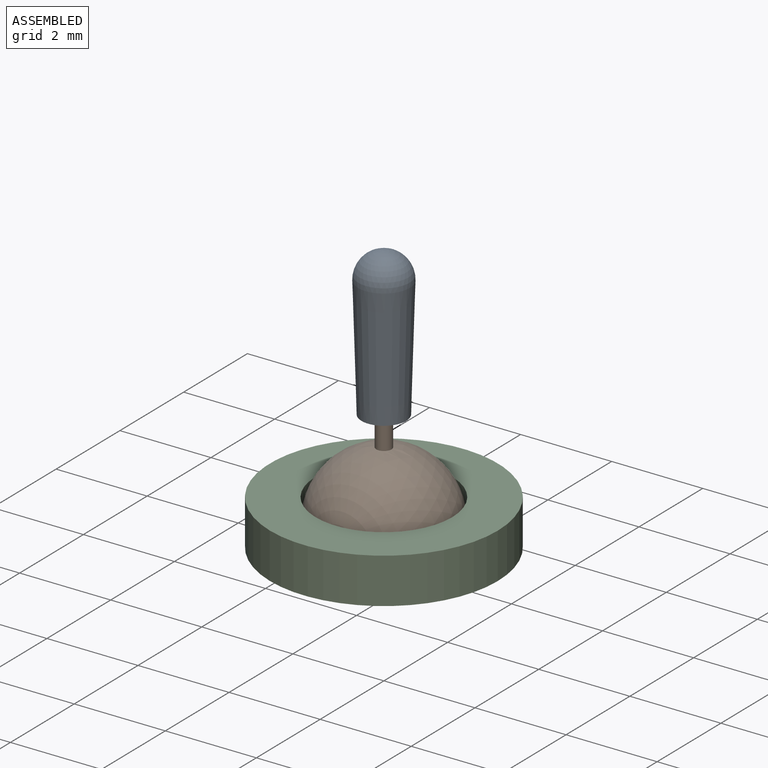
[diagram: assembled view]
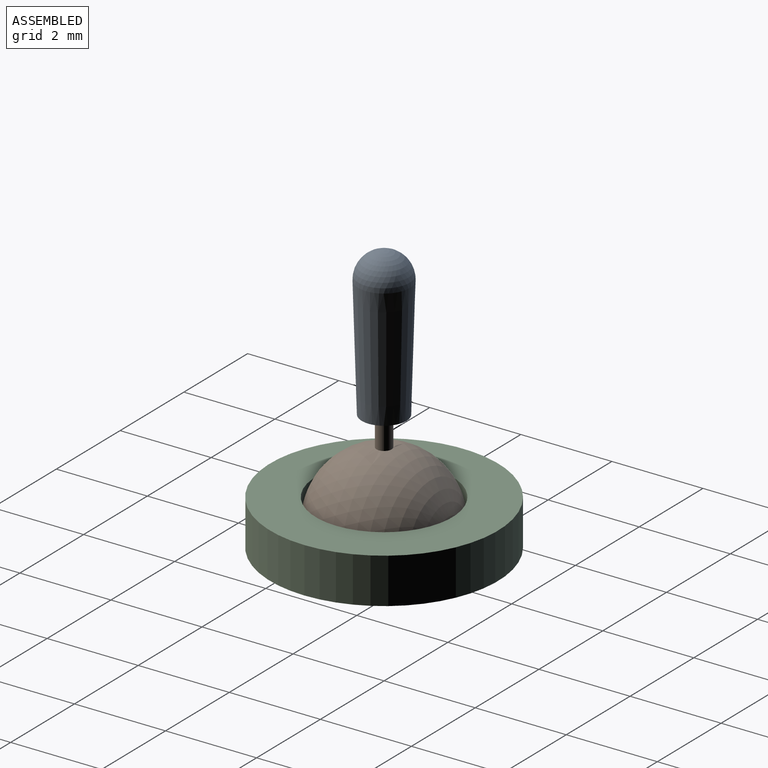
[diagram: assembled view, second angle]
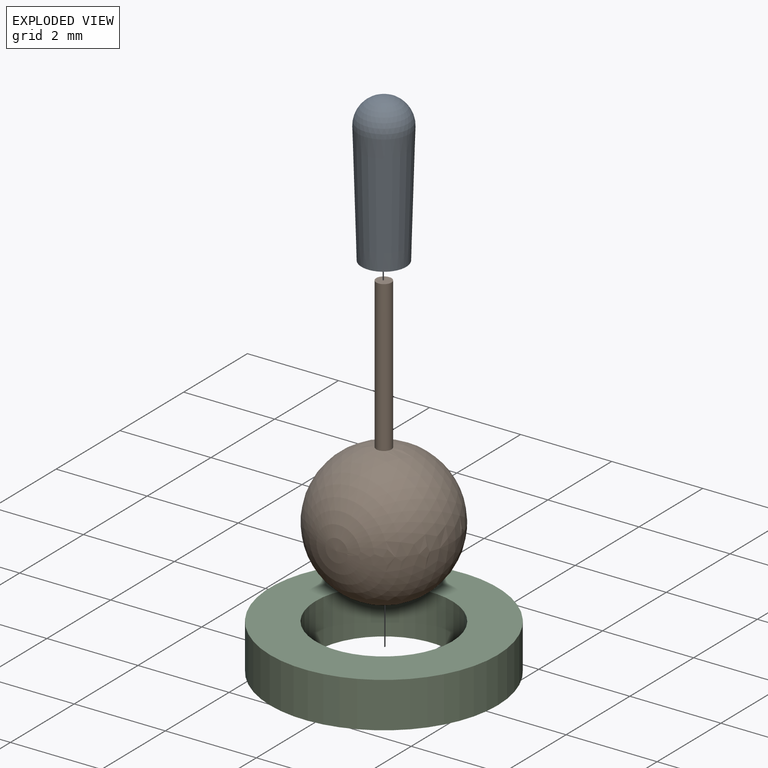
[diagram: exploded view]
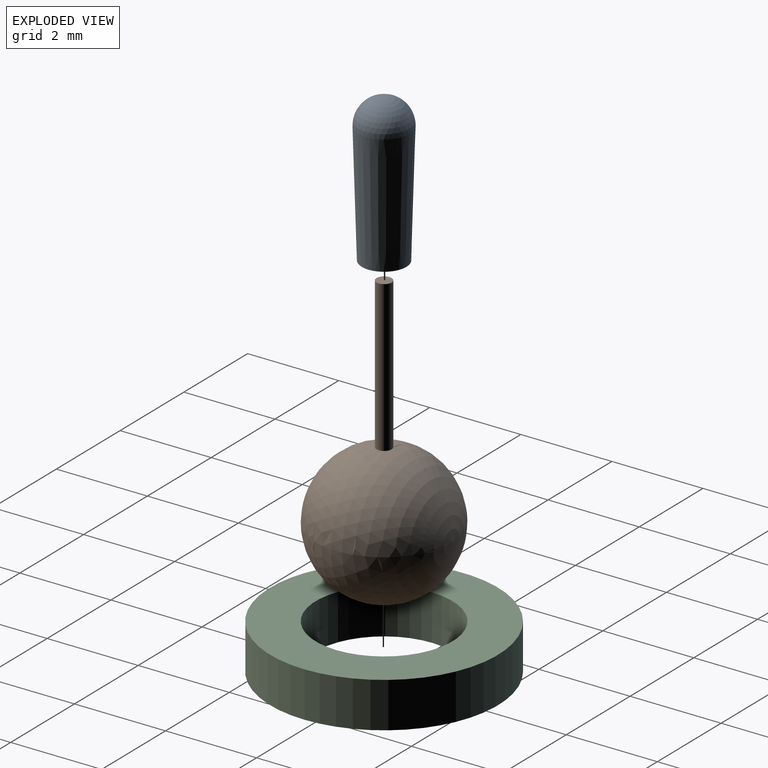
[diagram: exploded view, second angle]
ASSEMBLY  parts=3 mates=2
PART A: 5 faces, bbox 1.1x1.1x3.2 mm
  f0: cone r=0.57mm half-angle=1.7deg, axis (0,0,1), area 8.9mm2, adj f1,f4
  f1: sphere r=0.57mm, area 2.1mm2, adj f0
  f2: plane 0.33x0.33mm, normal (0,0,-1), area 0.1mm2, adj f3
  f3: cylinder r=0.17mm len=2.68mm, axis (0,0,-1), area 2.8mm2, adj f2,f4
  f4: plane 0.98x0.98mm, normal (0,0,-1), area 0.7mm2, adj f0,f3
PART B: 3 faces, bbox 3x3x6.3 mm
  f0: sphere r=1.5mm, area 28.2mm2, adj f1
  f1: cylinder r=0.17mm len=3.31mm, axis (0,0,1), area 3.5mm2, adj f0,f2
  f2: plane 0.33x0.33mm, normal (0,0,1), area 0.1mm2, adj f1
PART C: 4 faces, bbox 5x5x1 mm
  f0: cylinder r=1.5mm len=3mm, axis (0,0,-1), area 9.4mm2, adj f2,f3
  f1: cylinder r=2.5mm len=5mm, axis (0,0,-1), area 15.7mm2, adj f2,f3
  f2: plane 5x5mm, normal (0,0,1), area 12.6mm2, adj f0,f1
  f3: plane 5x5mm, normal (0,0,-1), area 12.6mm2, adj f0,f1
PLACE A t=(0,0,8.85)mm
PLACE B t=(0,0,7.36)mm
PLACE C t=(0,0,6.86)mm
MATE fastened A.f0 <-> B.f1  axis (0,0,1) through (0,0,12.16)mm
MATE fastened C.f0 <-> B.f1  axis (0,0,-1) through (0,0,7.36)mm
